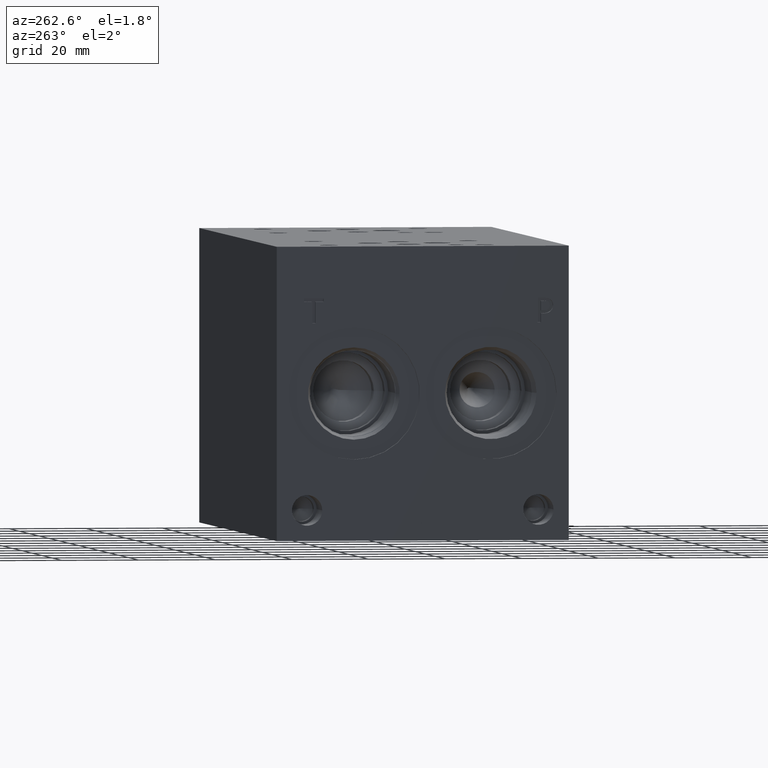
[diagram: clean part render]
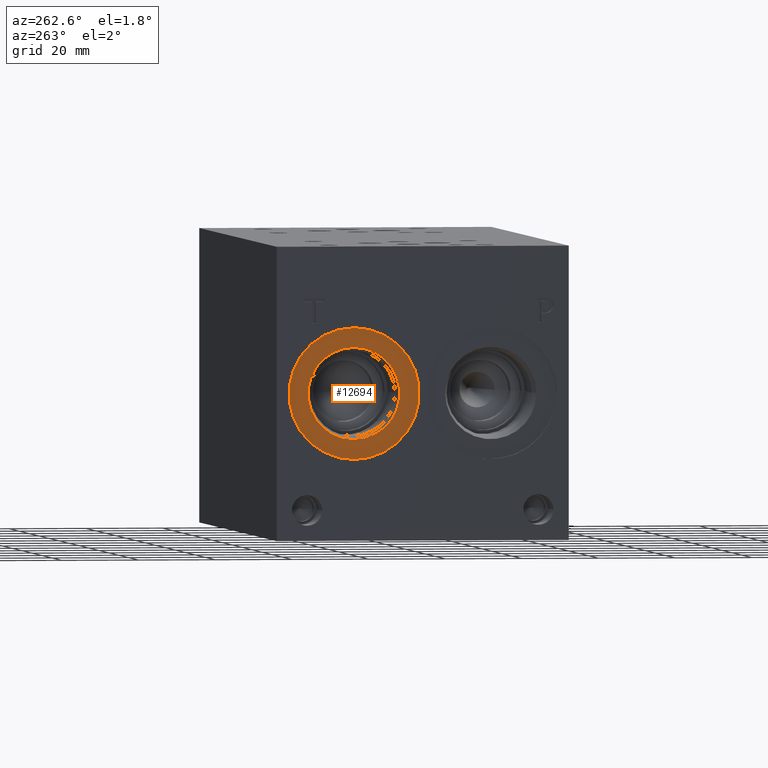
[diagram: same view with one face highlighted and labeled with its STEP entity id]
A machine part, auxiliary view. The second image highlights one B-rep face of the part: STEP entity #12694.
In plain terms, the highlighted planar face has unit normal (1, 0, 0).
Its self-contained STEP definition (entity closure, byte-faithful):
#448=CIRCLE('',#13497,17.0688);
#449=CIRCLE('',#13498,17.0688);
#450=CIRCLE('',#13500,11.9507);
#451=CIRCLE('',#13501,11.9507);
#542=FACE_BOUND('',#2434,.T.);
#1689=FACE_OUTER_BOUND('',#2433,.T.);
#2433=EDGE_LOOP('',(#11136,#11137));
#2434=EDGE_LOOP('',(#11138,#11139));
#5942=VERTEX_POINT('',#21925);
#5943=VERTEX_POINT('',#21927);
#5944=VERTEX_POINT('',#21931);
#5945=VERTEX_POINT('',#21932);
#7696=EDGE_CURVE('',#5942,#5943,#448,.T.);
#7697=EDGE_CURVE('',#5943,#5942,#449,.T.);
#7698=EDGE_CURVE('',#5944,#5945,#450,.T.);
#7699=EDGE_CURVE('',#5945,#5944,#451,.T.);
#11136=ORIENTED_EDGE('',*,*,#7697,.F.);
#11137=ORIENTED_EDGE('',*,*,#7696,.F.);
#11138=ORIENTED_EDGE('',*,*,#7698,.T.);
#11139=ORIENTED_EDGE('',*,*,#7699,.T.);
#11575=PLANE('',#13499);
#12694=ADVANCED_FACE('',(#1689,#542),#11575,.F.);
#13497=AXIS2_PLACEMENT_3D('',#21928,#16210,#16211);
#13498=AXIS2_PLACEMENT_3D('',#21929,#16212,#16213);
#13499=AXIS2_PLACEMENT_3D('',#21930,#16214,#16215);
#13500=AXIS2_PLACEMENT_3D('',#21933,#16216,#16217);
#13501=AXIS2_PLACEMENT_3D('',#21934,#16218,#16219);
#16210=DIRECTION('center_axis',(1.,0.,0.));
#16211=DIRECTION('ref_axis',(0.,0.,-1.));
#16212=DIRECTION('center_axis',(1.,0.,0.));
#16213=DIRECTION('ref_axis',(0.,0.,-1.));
#16214=DIRECTION('center_axis',(1.,0.,0.));
#16215=DIRECTION('ref_axis',(0.,0.,-1.));
#16216=DIRECTION('center_axis',(1.,0.,0.));
#16217=DIRECTION('ref_axis',(0.,0.,-1.));
#16218=DIRECTION('center_axis',(1.,0.,0.));
#16219=DIRECTION('ref_axis',(0.,0.,-1.));
#21925=CARTESIAN_POINT('',(0.7874,55.9562,21.0312));
#21927=CARTESIAN_POINT('',(0.7874,55.9562,55.1688));
#21928=CARTESIAN_POINT('Origin',(0.7874,55.9562,38.1));
#21929=CARTESIAN_POINT('Origin',(0.7874,55.9562,38.1));
#21930=CARTESIAN_POINT('Origin',(0.7874,55.9562,50.0507));
#21931=CARTESIAN_POINT('',(0.7874,55.9562,50.0507));
#21932=CARTESIAN_POINT('',(0.787399999999999,55.9562,26.1493));
#21933=CARTESIAN_POINT('Origin',(0.7874,55.9562,38.1));
#21934=CARTESIAN_POINT('Origin',(0.7874,55.9562,38.1));